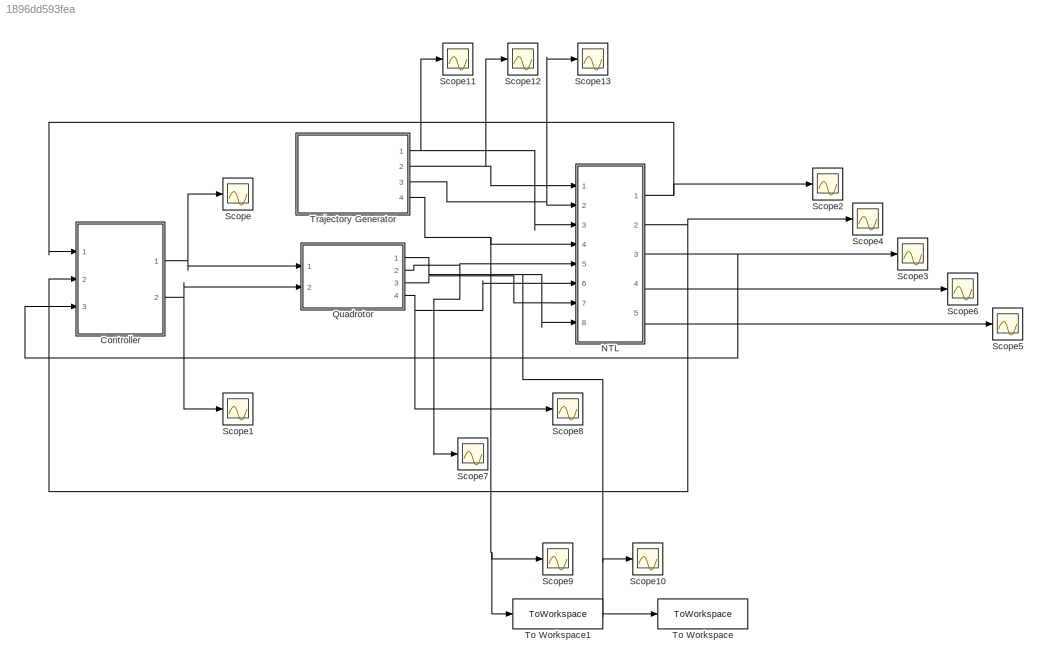
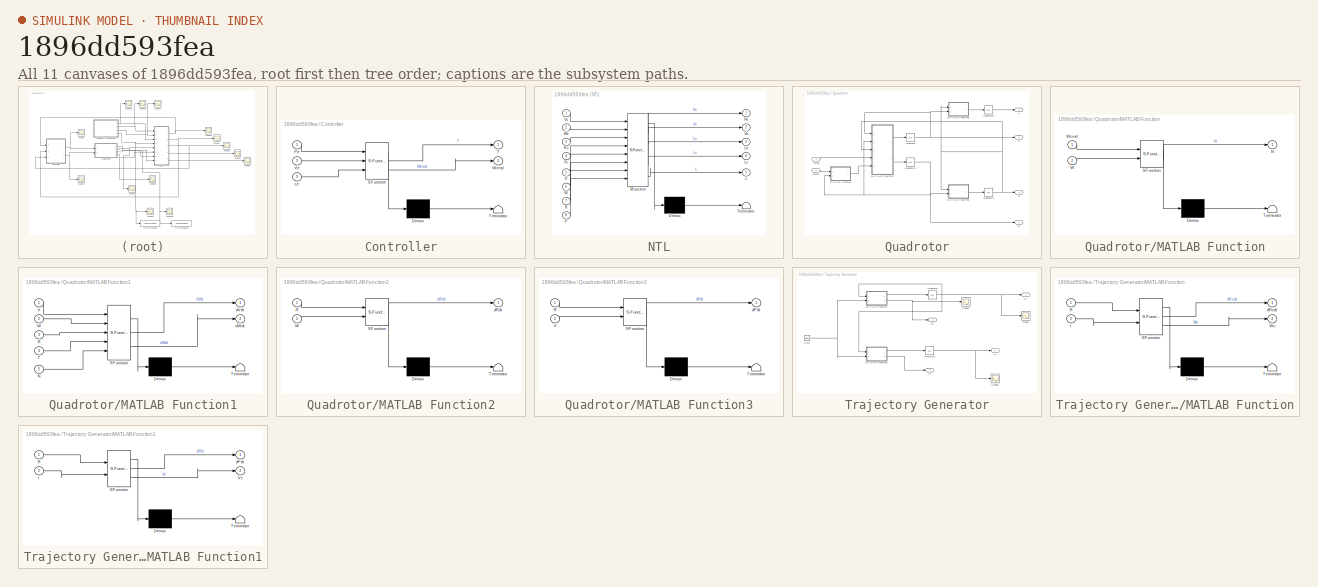
[diagram: thumbnail index - all 11 canvases of the model, root first then tree order]
MODEL slx_1896dd593fea
KIND model
CONFIG AbsTol = auto
CONFIG EnableMultiTasking = off
CONFIG FixedStep = auto
CONFIG MaxStep = 0.01
CONFIG MinStep = auto
CONFIG RelTol = 1e-3
CONFIG SampleTimeConstraint = Unconstrained
CONFIG SolverName = VariableStepAuto
CONFIG StartTime = 0.0
CONFIG StopTime = 100
BLOCK [SubSystem] Controller
  ErrorFcn = Stateflow.Translate.translate
  PermitHierarchicalResolution = ExplicitOnly
  Ports = [3, 2]
  RequestExecContextInheritance = off
  SFBlockType = MATLAB Function
  TreatAsAtomicUnit = on
BLOCK [Demux] Controller/ Demux 
  Outputs = 1
  Ports = [1, 1]
BLOCK [S-Function] Controller/ SFunction 
  EnableBusSupport = on
  FunctionName = sf_sfun
  Parameters = K
  PortCounts = [3 3]
  Ports = [3, 3]
  SFcnIsStateOwnerBlock = off
  SFunctionDeploymentMode = off
  Tag = Stateflow S-Function 2
BLOCK [Terminator] Controller/ Terminator 
BLOCK [Inport] Controller/Le
  Port = 3
BLOCK [Inport] Controller/Pe
BLOCK [Outport] Controller/T
BLOCK [Inport] Controller/Ve
  Port = 2
BLOCK [Outport] Controller/Wcmd
  Port = 2
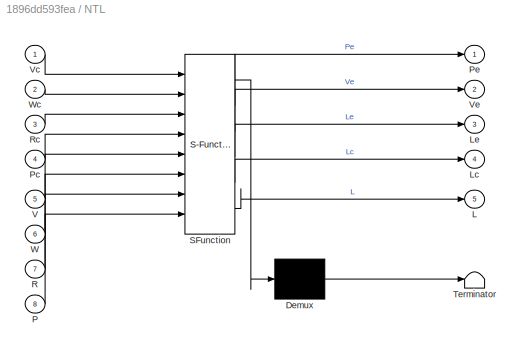
BLOCK [SubSystem] NTL
  ErrorFcn = Stateflow.Translate.translate
  PermitHierarchicalResolution = ExplicitOnly
  Ports = [8, 5]
  RequestExecContextInheritance = off
  SFBlockType = MATLAB Function
  TreatAsAtomicUnit = on
BLOCK [Demux] NTL/ Demux 
  Outputs = 1
  Ports = [1, 1]
BLOCK [S-Function] NTL/ SFunction 
  EnableBusSupport = on
  FunctionName = sf_sfun
  PortCounts = [8 6]
  Ports = [8, 6]
  SFcnIsStateOwnerBlock = off
  SFunctionDeploymentMode = off
  Tag = Stateflow S-Function 8
BLOCK [Terminator] NTL/ Terminator 
BLOCK [Outport] NTL/L
  Port = 5
BLOCK [Outport] NTL/Lc
  Port = 4
BLOCK [Outport] NTL/Le
  Port = 3
BLOCK [Inport] NTL/P
  Port = 8
BLOCK [Inport] NTL/Pc
  Port = 4
BLOCK [Outport] NTL/Pe
BLOCK [Inport] NTL/R
  Port = 7
BLOCK [Inport] NTL/Rc
  Port = 3
BLOCK [Inport] NTL/V
  Port = 5
BLOCK [Inport] NTL/Vc
BLOCK [Outport] NTL/Ve
  Port = 2
BLOCK [Inport] NTL/W
  Port = 6
BLOCK [Inport] NTL/Wc
  Port = 2
BLOCK [SubSystem] Quadrotor
  Ports = [2, 4]
  RequestExecContextInheritance = off
BLOCK [Integrator] Quadrotor/Integrator
  InitialCondition = [0;0;0]
  Ports = [1, 1]
BLOCK [Integrator] Quadrotor/Integrator1
  InitialCondition = [0;0;0]
  Ports = [1, 1]
BLOCK [Integrator] Quadrotor/Integrator2
  InitialCondition = [0;1;0]
  Ports = [1, 1]
BLOCK [Integrator] Quadrotor/Integrator3
  InitialCondition = eye(3)
  Ports = [1, 1]
BLOCK [SubSystem] Quadrotor/MATLAB Function
  ErrorFcn = Stateflow.Translate.translate
  PermitHierarchicalResolution = ExplicitOnly
  Ports = [2, 1]
  RequestExecContextInheritance = off
  SFBlockType = MATLAB Function
  TreatAsAtomicUnit = on
BLOCK [Demux] Quadrotor/MATLAB Function/ Demux 
  Outputs = 1
  Ports = [1, 1]
BLOCK [S-Function] Quadrotor/MATLAB Function/ SFunction 
  EnableBusSupport = on
  FunctionName = sf_sfun
  PortCounts = [2 2]
  Ports = [2, 2]
  SFcnIsStateOwnerBlock = off
  SFunctionDeploymentMode = off
  Tag = Stateflow S-Function 4
BLOCK [Terminator] Quadrotor/MATLAB Function/ Terminator 
BLOCK [Outport] Quadrotor/MATLAB Function/N
BLOCK [Inport] Quadrotor/MATLAB Function/W
  Port = 2
BLOCK [Inport] Quadrotor/MATLAB Function/Wcmd
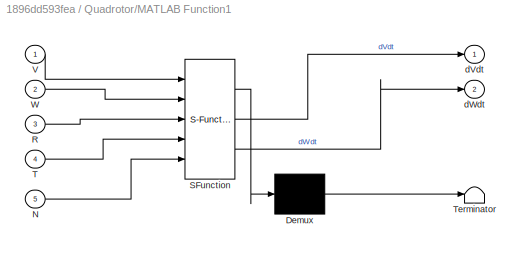
BLOCK [SubSystem] Quadrotor/MATLAB Function1
  ErrorFcn = Stateflow.Translate.translate
  PermitHierarchicalResolution = ExplicitOnly
  Ports = [5, 2]
  RequestExecContextInheritance = off
  SFBlockType = MATLAB Function
  TreatAsAtomicUnit = on
BLOCK [Demux] Quadrotor/MATLAB Function1/ Demux 
  Outputs = 1
  Ports = [1, 1]
BLOCK [S-Function] Quadrotor/MATLAB Function1/ SFunction 
  EnableBusSupport = on
  FunctionName = sf_sfun
  Parameters = J,Jinv,g,m
  PortCounts = [5 3]
  Ports = [5, 3]
  SFcnIsStateOwnerBlock = off
  SFunctionDeploymentMode = off
  Tag = Stateflow S-Function 5
BLOCK [Terminator] Quadrotor/MATLAB Function1/ Terminator 
BLOCK [Inport] Quadrotor/MATLAB Function1/N
  Port = 5
BLOCK [Inport] Quadrotor/MATLAB Function1/R
  Port = 3
BLOCK [Inport] Quadrotor/MATLAB Function1/T
  Port = 4
BLOCK [Inport] Quadrotor/MATLAB Function1/V
BLOCK [Inport] Quadrotor/MATLAB Function1/W
  Port = 2
BLOCK [Outport] Quadrotor/MATLAB Function1/dVdt
BLOCK [Outport] Quadrotor/MATLAB Function1/dWdt
  Port = 2
BLOCK [SubSystem] Quadrotor/MATLAB Function2
  ErrorFcn = Stateflow.Translate.translate
  PermitHierarchicalResolution = ExplicitOnly
  Ports = [2, 1]
  RequestExecContextInheritance = off
  SFBlockType = MATLAB Function
  TreatAsAtomicUnit = on
BLOCK [Demux] Quadrotor/MATLAB Function2/ Demux 
  Outputs = 1
  Ports = [1, 1]
BLOCK [S-Function] Quadrotor/MATLAB Function2/ SFunction 
  EnableBusSupport = on
  FunctionName = sf_sfun
  PortCounts = [2 2]
  Ports = [2, 2]
  SFcnIsStateOwnerBlock = off
  SFunctionDeploymentMode = off
  Tag = Stateflow S-Function 6
BLOCK [Terminator] Quadrotor/MATLAB Function2/ Terminator 
BLOCK [Inport] Quadrotor/MATLAB Function2/R
BLOCK [Inport] Quadrotor/MATLAB Function2/W
  Port = 2
BLOCK [Outport] Quadrotor/MATLAB Function2/dRdt
BLOCK [SubSystem] Quadrotor/MATLAB Function3
  ErrorFcn = Stateflow.Translate.translate
  PermitHierarchicalResolution = ExplicitOnly
  Ports = [2, 1]
  RequestExecContextInheritance = off
  SFBlockType = MATLAB Function
  TreatAsAtomicUnit = on
BLOCK [Demux] Quadrotor/MATLAB Function3/ Demux 
  Outputs = 1
  Ports = [1, 1]
BLOCK [S-Function] Quadrotor/MATLAB Function3/ SFunction 
  EnableBusSupport = on
  FunctionName = sf_sfun
  PortCounts = [2 2]
  Ports = [2, 2]
  SFcnIsStateOwnerBlock = off
  SFunctionDeploymentMode = off
  Tag = Stateflow S-Function 7
BLOCK [Terminator] Quadrotor/MATLAB Function3/ Terminator 
BLOCK [Inport] Quadrotor/MATLAB Function3/R
BLOCK [Inport] Quadrotor/MATLAB Function3/V
  Port = 2
BLOCK [Outport] Quadrotor/MATLAB Function3/dPdt
BLOCK [Outport] Quadrotor/P
BLOCK [Outport] Quadrotor/R
  Port = 3
BLOCK [Inport] Quadrotor/Thrust
BLOCK [Outport] Quadrotor/V
  Port = 2
BLOCK [Outport] Quadrotor/W
  Port = 4
BLOCK [Inport] Quadrotor/Wcmd
  Port = 2
BLOCK [Scope] Scope
  Floating = off
  NumInputPorts = 1
  Ports = [1]
  ScopeSpecificationString = Simulink.scopes.TimeScopeBlockCfg('CurrentConfiguration', extmgr.ConfigurationSet(extmgr.Configuration('Core','General UI',true),extmgr.Configuration('Core','Source UI',true),extmgr.Configuration('Sources','WiredSimulink',true,'DataLoggingVariableName','ScopeData1'),extmgr.Configuration('Visuals','Time Domain',true,'SerializedDisplays',{struct('MinYLimReal','-0.3231','MaxYLimReal','2.90794','YLabe...<+1369ch>
BLOCK [Scope] Scope1
  Floating = off
  NumInputPorts = 1
  Ports = [1]
  ScopeSpecificationString = Simulink.scopes.TimeScopeBlockCfg('CurrentConfiguration', extmgr.ConfigurationSet(extmgr.Configuration('Core','General UI',true),extmgr.Configuration('Core','Source UI',true),extmgr.Configuration('Sources','WiredSimulink',true,'DataLoggingVariableName','ScopeData2'),extmgr.Configuration('Visuals','Time Domain',true,'SerializedDisplays',{struct('MinYLimReal','-3.74612','MaxYLimReal','2.06154','YLab...<+1471ch>
BLOCK [Scope] Scope10
  Floating = off
  NumInputPorts = 1
  Ports = [1]
  ScopeSpecificationString = Simulink.scopes.TimeScopeBlockCfg('CurrentConfiguration', extmgr.ConfigurationSet(extmgr.Configuration('Core','General UI',true),extmgr.Configuration('Core','Source UI',true),extmgr.Configuration('Sources','WiredSimulink',true,'DataLoggingVariableName','ScopeData2'),extmgr.Configuration('Visuals','Time Domain',true,'SerializedDisplays',{struct('MinYLimReal','-13.38421','MaxYLimReal','13.47794','YL...<+1491ch>
BLOCK [Scope] Scope11
  Floating = off
  NumInputPorts = 1
  Ports = [1]
  ScopeSpecificationString = Simulink.scopes.TimeScopeBlockCfg('CurrentConfiguration', extmgr.ConfigurationSet(extmgr.Configuration('Core','General UI',true),extmgr.Configuration('Core','Source UI',true),extmgr.Configuration('Sources','WiredSimulink',true,'DataLoggingVariableName','ScopeData1'),extmgr.Configuration('Visuals','Time Domain',true,'SerializedDisplays',{struct('MinYLimReal','-1.25003','MaxYLimReal','1.25003','YLab...<+1599ch>
BLOCK [Scope] Scope12
  Floating = off
  NumInputPorts = 1
  Ports = [1]
  ScopeSpecificationString = Simulink.scopes.TimeScopeBlockCfg('CurrentConfiguration', extmgr.ConfigurationSet(extmgr.Configuration('Core','General UI',true),extmgr.Configuration('Core','Source UI',true),extmgr.Configuration('Sources','WiredSimulink',true,'DataLoggingVariableName','ScopeData2'),extmgr.Configuration('Visuals','Time Domain',true,'SerializedDisplays',{struct('MinYLimReal','-0.0625','MaxYLimReal','0.5625','YLabel...<+1434ch>
BLOCK [Scope] Scope13
  Floating = off
  NumInputPorts = 1
  Ports = [1]
  ScopeSpecificationString = Simulink.scopes.TimeScopeBlockCfg('CurrentConfiguration', extmgr.ConfigurationSet(extmgr.Configuration('Core','General UI',true),extmgr.Configuration('Core','Source UI',true),extmgr.Configuration('Sources','WiredSimulink',true,'DataLoggingVariableName','ScopeData3'),extmgr.Configuration('Visuals','Time Domain',true,'SerializedDisplays',{struct('MinYLimReal','-0.19635','MaxYLimReal','1.76715','YLab...<+1440ch>
BLOCK [Scope] Scope2
  Floating = off
  NumInputPorts = 1
  Ports = [1]
  ScopeSpecificationString = Simulink.scopes.TimeScopeBlockCfg('CurrentConfiguration', extmgr.ConfigurationSet(extmgr.Configuration('Core','General UI',true),extmgr.Configuration('Core','Source UI',true),extmgr.Configuration('Sources','WiredSimulink',true,'DataLoggingVariableName','ScopeData3'),extmgr.Configuration('Visuals','Time Domain',true,'SerializedDisplays',{struct('MinYLimReal','-0.63771','MaxYLimReal','1.18197','YLab...<+1457ch>
BLOCK [Scope] Scope3
  Floating = off
  NumInputPorts = 1
  Ports = [1]
  ScopeSpecificationString = Simulink.scopes.TimeScopeBlockCfg('CurrentConfiguration', extmgr.ConfigurationSet(extmgr.Configuration('Core','General UI',true),extmgr.Configuration('Core','Source UI',true),extmgr.Configuration('Sources','WiredSimulink',true,'DataLoggingVariableName','ScopeData4'),extmgr.Configuration('Visuals','Time Domain',true,'SerializedDisplays',{struct('MinYLimReal','-0.54674','MaxYLimReal','0.15936','YLab...<+1359ch>
BLOCK [Scope] Scope4
  Floating = off
  NumInputPorts = 1
  Ports = [1]
  ScopeSpecificationString = Simulink.scopes.TimeScopeBlockCfg('CurrentConfiguration', extmgr.ConfigurationSet(extmgr.Configuration('Core','General UI',true),extmgr.Configuration('Core','Source UI',true),extmgr.Configuration('Sources','WiredSimulink',true,'DataLoggingVariableName','ScopeData5'),extmgr.Configuration('Visuals','Time Domain',true,'SerializedDisplays',{struct('MinYLimReal','-0.81568','MaxYLimReal','0.63081','YLab...<+1359ch>
BLOCK [Scope] Scope5
  Floating = off
  NumInputPorts = 1
  Ports = [1]
  ScopeSpecificationString = Simulink.scopes.TimeScopeBlockCfg('CurrentConfiguration', extmgr.ConfigurationSet(extmgr.Configuration('Core','General UI',true),extmgr.Configuration('Core','Source UI',true),extmgr.Configuration('Sources','WiredSimulink',true,'DataLoggingVariableName','ScopeData6'),extmgr.Configuration('Visuals','Time Domain',true,'SerializedDisplays',{struct('MinYLimReal','-224.95343','MaxYLimReal','224.97489','...<+1373ch>
BLOCK [Scope] Scope6
  Floating = off
  NumInputPorts = 1
  Ports = [1]
  ScopeSpecificationString = Simulink.scopes.TimeScopeBlockCfg('CurrentConfiguration', extmgr.ConfigurationSet(extmgr.Configuration('Core','General UI',true),extmgr.Configuration('Core','Source UI',true),extmgr.Configuration('Sources','WiredSimulink',true,'DataLoggingVariableName','ScopeData7'),extmgr.Configuration('Visuals','Time Domain',true,'SerializedDisplays',{struct('MinYLimReal','-224.64093','MaxYLimReal','224.88141','...<+1373ch>
BLOCK [Scope] Scope7
  Floating = off
  NumInputPorts = 1
  Ports = [1]
  ScopeSpecificationString = Simulink.scopes.TimeScopeBlockCfg('CurrentConfiguration', extmgr.ConfigurationSet(extmgr.Configuration('Core','General UI',true),extmgr.Configuration('Core','Source UI',true),extmgr.Configuration('Sources','WiredSimulink',true,'DataLoggingVariableName','ScopeData8'),extmgr.Configuration('Visuals','Time Domain',true,'SerializedDisplays',{struct('MinYLimReal','-0.44858','MaxYLimReal','1.12627','YLab...<+1485ch>
BLOCK [Scope] Scope8
  Floating = off
  NumInputPorts = 1
  Ports = [1]
  ScopeSpecificationString = Simulink.scopes.TimeScopeBlockCfg('CurrentConfiguration', extmgr.ConfigurationSet(extmgr.Configuration('Core','General UI',true),extmgr.Configuration('Core','Source UI',true),extmgr.Configuration('Sources','WiredSimulink',true,'DataLoggingVariableName','ScopeData9'),extmgr.Configuration('Visuals','Time Domain',true,'SerializedDisplays',{struct('MinYLimReal','-3.49742','MaxYLimReal','2.06034','YLab...<+1404ch>
BLOCK [Scope] Scope9
  Floating = off
  NumInputPorts = 1
  Ports = [1]
  ScopeSpecificationString = Simulink.scopes.TimeScopeBlockCfg('CurrentConfiguration', extmgr.ConfigurationSet(extmgr.Configuration('Core','General UI',true),extmgr.Configuration('Core','Source UI',true),extmgr.Configuration('Sources','WiredSimulink',true,'DataLoggingVariableName','ScopeData1'),extmgr.Configuration('Visuals','Time Domain',true,'SerializedDisplays',{struct('MinYLimReal','-12.55707','MaxYLimReal','12.65656','YL...<+1498ch>
BLOCK [ToWorkspace] To Workspace
  FixptAsFi = on
  MaxDataPoints = inf
  Ports = [1]
  SampleTime = -1
  SaveFormat = Timeseries
  VariableName = positionni
BLOCK [ToWorkspace] To Workspace1
  FixptAsFi = on
  MaxDataPoints = inf
  Ports = [1]
  SampleTime = -1
  SaveFormat = Timeseries
  VariableName = positioncommandni
BLOCK [SubSystem] Trajectory Generator
  Ports = [0, 4]
  RequestExecContextInheritance = off
BLOCK [Clock] Trajectory Generator/Clock
BLOCK [Integrator] Trajectory Generator/Integrator
  InitialCondition = eye(3)
  Ports = [1, 1]
BLOCK [Integrator] Trajectory Generator/Integrator1
  InitialCondition = [0;0;0]
  Ports = [1, 1]
BLOCK [SubSystem] Trajectory Generator/MATLAB Function
  ErrorFcn = Stateflow.Translate.translate
  PermitHierarchicalResolution = ExplicitOnly
  Ports = [2, 2]
  RequestExecContextInheritance = off
  SFBlockType = MATLAB Function
  TreatAsAtomicUnit = on
BLOCK [Demux] Trajectory Generator/MATLAB Function/ Demux 
  Outputs = 1
  Ports = [1, 1]
BLOCK [S-Function] Trajectory Generator/MATLAB Function/ SFunction 
  EnableBusSupport = on
  FunctionName = sf_sfun
  PortCounts = [2 3]
  Ports = [2, 3]
  SFcnIsStateOwnerBlock = off
  SFunctionDeploymentMode = off
  Tag = Stateflow S-Function 1
BLOCK [Terminator] Trajectory Generator/MATLAB Function/ Terminator 
BLOCK [Inport] Trajectory Generator/MATLAB Function/R
BLOCK [Outport] Trajectory Generator/MATLAB Function/Wc
  Port = 2
BLOCK [Outport] Trajectory Generator/MATLAB Function/dRcdt
BLOCK [Inport] Trajectory Generator/MATLAB Function/t
  Port = 2
BLOCK [SubSystem] Trajectory Generator/MATLAB Function1
  ErrorFcn = Stateflow.Translate.translate
  PermitHierarchicalResolution = ExplicitOnly
  Ports = [2, 2]
  RequestExecContextInheritance = off
  SFBlockType = MATLAB Function
  TreatAsAtomicUnit = on
BLOCK [Demux] Trajectory Generator/MATLAB Function1/ Demux 
  Outputs = 1
  Ports = [1, 1]
BLOCK [S-Function] Trajectory Generator/MATLAB Function1/ SFunction 
  EnableBusSupport = on
  FunctionName = sf_sfun
  PortCounts = [2 3]
  Ports = [2, 3]
  SFcnIsStateOwnerBlock = off
  SFunctionDeploymentMode = off
  Tag = Stateflow S-Function 3
BLOCK [Terminator] Trajectory Generator/MATLAB Function1/ Terminator 
BLOCK [Inport] Trajectory Generator/MATLAB Function1/R
BLOCK [Outport] Trajectory Generator/MATLAB Function1/Vc
  Port = 2
BLOCK [Outport] Trajectory Generator/MATLAB Function1/dPdt
BLOCK [Inport] Trajectory Generator/MATLAB Function1/t
  Port = 2
BLOCK [Outport] Trajectory Generator/Pc
  Port = 4
BLOCK [Outport] Trajectory Generator/Rc
BLOCK [Scope] Trajectory Generator/Scope
  Floating = off
  NumInputPorts = 1
  Ports = [1]
  ScopeSpecificationString = Simulink.scopes.TimeScopeBlockCfg('CurrentConfiguration', extmgr.ConfigurationSet(extmgr.Configuration('Core','General UI',true),extmgr.Configuration('Core','Source UI',true),extmgr.Configuration('Sources','WiredSimulink',true),extmgr.Configuration('Visuals','Time Domain',true,'SerializedDisplays',{struct('MinYLimReal','-1.25','MaxYLimReal','1.25','YLabelReal','','MinYLimMag','0.00000','MaxYLimMag...<+1500ch>
BLOCK [Scope] Trajectory Generator/Scope1
  Floating = off
  NumInputPorts = 1
  Ports = [1]
  ScopeSpecificationString = Simulink.scopes.TimeScopeBlockCfg('CurrentConfiguration', extmgr.ConfigurationSet(extmgr.Configuration('Core','General UI',true),extmgr.Configuration('Core','Source UI',true),extmgr.Configuration('Sources','WiredSimulink',true,'DataLoggingVariableName','ScopeData1'),extmgr.Configuration('Visuals','Time Domain',true,'SerializedDisplays',{struct('MinYLimReal','-0.19635','MaxYLimReal','1.76715','YLab...<+1440ch>
BLOCK [Scope] Trajectory Generator/Scope2
  Floating = off
  NumInputPorts = 1
  Ports = [1]
  ScopeSpecificationString = Simulink.scopes.TimeScopeBlockCfg('CurrentConfiguration', extmgr.ConfigurationSet(extmgr.Configuration('Core','General UI',true),extmgr.Configuration('Core','Source UI',true),extmgr.Configuration('Sources','WiredSimulink',true,'DataLoggingVariableName','ScopeData2'),extmgr.Configuration('Visuals','Time Domain',true,'SerializedDisplays',{struct('MinYLimReal','-12.39856','MaxYLimReal','12.65355','YL...<+1410ch>
BLOCK [Outport] Trajectory Generator/Vc
  Port = 2
BLOCK [Outport] Trajectory Generator/Wc
  Port = 3
NET Controller:1 -> Quadrotor:1, Scope:1
NET Controller:2 -> Quadrotor:2, Scope1:1
NET NTL:1 -> Controller:1, Scope2:1
NET NTL:2 -> Controller:2, Scope4:1
NET NTL:3 -> Controller:3, Scope3:1
LINE NTL:4 -> Scope6:1
LINE NTL:5 -> Scope5:1
NET Quadrotor/Integrator1:1 -> Quadrotor/MATLAB Function1:2, Quadrotor/MATLAB Function2:2, Quadrotor/MATLAB Function:2, Quadrotor/W:1
LINE Quadrotor/Integrator2:1 -> Quadrotor/P:1
NET Quadrotor/Integrator3:1 -> Quadrotor/MATLAB Function1:3, Quadrotor/MATLAB Function2:1, Quadrotor/MATLAB Function3:1, Quadrotor/R:1
NET Quadrotor/Integrator:1 -> Quadrotor/MATLAB Function1:1, Quadrotor/MATLAB Function3:2, Quadrotor/V:1
LINE Quadrotor/MATLAB Function1:1 -> Quadrotor/Integrator:1
LINE Quadrotor/MATLAB Function1:2 -> Quadrotor/Integrator1:1
LINE Quadrotor/MATLAB Function2:1 -> Quadrotor/Integrator3:1
LINE Quadrotor/MATLAB Function3:1 -> Quadrotor/Integrator2:1
LINE Quadrotor/MATLAB Function:1 -> Quadrotor/MATLAB Function1:5
LINE Quadrotor/Thrust:1 -> Quadrotor/MATLAB Function1:4
LINE Quadrotor/Wcmd:1 -> Quadrotor/MATLAB Function:1
NET Quadrotor:1 -> NTL:8, Scope10:1, To Workspace:1
NET Quadrotor:2 -> NTL:5, Scope7:1
LINE Quadrotor:3 -> NTL:7
NET Quadrotor:4 -> NTL:6, Scope8:1
NET Trajectory Generator/Clock:1 -> Trajectory Generator/MATLAB Function1:2, Trajectory Generator/MATLAB Function:2
NET Trajectory Generator/Integrator1:1 -> Trajectory Generator/Pc:1, Trajectory Generator/Scope2:1
NET Trajectory Generator/Integrator:1 -> Trajectory Generator/MATLAB Function1:1, Trajectory Generator/MATLAB Function:1, Trajectory Generator/Rc:1, Trajectory Generator/Scope:1
LINE Trajectory Generator/MATLAB Function1:1 -> Trajectory Generator/Integrator1:1
LINE Trajectory Generator/MATLAB Function1:2 -> Trajectory Generator/Vc:1
LINE Trajectory Generator/MATLAB Function:1 -> Trajectory Generator/Integrator:1
NET Trajectory Generator/MATLAB Function:2 -> Trajectory Generator/Scope1:1, Trajectory Generator/Wc:1
NET Trajectory Generator:1 -> NTL:3, Scope11:1
NET Trajectory Generator:2 -> NTL:1, Scope12:1
NET Trajectory Generator:3 -> NTL:2, Scope13:1
NET Trajectory Generator:4 -> NTL:4, Scope9:1, To Workspace1:1
note: NET lines group one-source signal fan-out (src -> all destinations, sorted); 1:1 wires keep LINE
CHART Trajectory Generator/MATLAB Function states=1 transitions=1
  STATE_LABEL 'eML_blk_kernel()'
  STATE_LABEL 'SCRIPT:\nfunction [dRcdt,Wc] =dRdt(R,t)\n\nWc=[0;0;0];\nif((t>=19.5)&&(t<=20.5))\n    Wc=[0;0;pi/2];\nend\nif((t>=39.5)&&(t<=40.5))\n    Wc=[0;0;pi/2];\nend\nif((t>=59.5)&&(t<=60.5))\n    Wc=[0;0;pi/2];\nend\ndRcdt=R*Skew(Wc);\nend\n'
CHART Controller states=1 transitions=1
  STATE_LABEL 'eML_blk_kernel()'
  STATE_LABEL 'SCRIPT:\nfunction [T,Wcmd]=Controller(Pe,Ve,Le,K)\nx=[Pe;Ve;Le];\nu=-K*x;\nT=u(1);\nWcmd=u(2:4);\nend\n'
CHART Trajectory Generator/MATLAB Function1 states=1 transitions=1
  STATE_LABEL 'eML_blk_kernel()'
  STATE_LABEL 'SCRIPT:\nfunction [dPdt,Vc] = dPdt(R,t)\nVc=[0.5;0;0];\ndPdt=R*Vc;\nend\n\n'
CHART Quadrotor/MATLAB Function states=1 transitions=1
  STATE_LABEL 'eML_blk_kernel()'
  STATE_LABEL 'SCRIPT:\nfunction N = Wcontorl(Wcmd,W)\nN=1000*(Wcmd-W);\nend'
CHART Quadrotor/MATLAB Function1 states=1 transitions=1
  STATE_LABEL 'eML_blk_kernel()'
  STATE_LABEL "SCRIPT:\nfunction [dVdt,dWdt]=QDyanamics(V,W,R,T,N,Jinv, m, g, J)\nWindforce = [0.5;0.5;0];% 0.5N along X and Y \ndVdt=-Skew(W)*V+1/m*([0;0;-T]+R'*[0;0;m*g]+Windforce);\ndWdt=-Jinv*Skew(W)*J*W+Jinv*N;\nend\n\n"
CHART Quadrotor/MATLAB Function2 states=1 transitions=1
  STATE_LABEL 'eML_blk_kernel()'
  STATE_LABEL 'SCRIPT:\nfunction dRdt=dRdt(R,W)\ndRdt=R*Skew(W);\nend\n'
CHART Quadrotor/MATLAB Function3 states=1 transitions=1
  STATE_LABEL 'eML_blk_kernel()'
  STATE_LABEL 'SCRIPT:\nfunction dPdt=dPdt(R,V)\ndPdt=R*V;\nend\n'
CHART NTL states=1 transitions=1
  STATE_LABEL 'eML_blk_kernel()'
  STATE_LABEL "SCRIPT:\nfunction [Pe,Ve,Le,Lc,L] = NLT(Vc,Wc,Rc,Pc,V,W,R,P)\nRc2b=R'*Rc;\nVe=V-Vc;\nPe=R'*(P-Pc);\nRe=Rc'*R;\nL=Rmat2PRY(R)*180/pi;\nLc=Rmat2PRY(Rc)*180/pi;\nLe=Rmat2PRY(Re);\nend\n"
CHART  states=0 transitions=0
CHART  states=0 transitions=0
CHART  states=0 transitions=0
CHART  states=0 transitions=0
CHART  states=0 transitions=0
CHART  states=0 transitions=0
CHART  states=0 transitions=0
CHART  states=0 transitions=0
